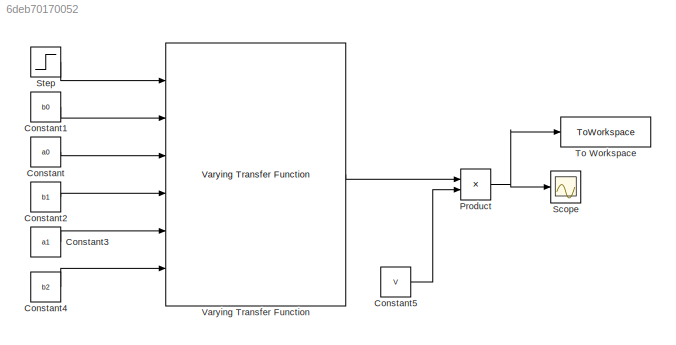
MODEL slx_6deb70170052
KIND model
CONFIG AbsTol = auto
CONFIG EnableMultiTasking = off
CONFIG FixedStep = auto
CONFIG MaxStep = auto
CONFIG MinStep = auto
CONFIG RelTol = 1e-3
CONFIG SampleTimeConstraint = Unconstrained
CONFIG Solver = VariableStepAuto
CONFIG SolverName = VariableStepAuto
CONFIG StartTime = 0.0
CONFIG StopTime = 10.0
BLOCK [Constant] Constant
  Value = a0
BLOCK [Constant] Constant1
  Value = b0
BLOCK [Constant] Constant2
  Value = b1
BLOCK [Constant] Constant3
  Value = a1
BLOCK [Constant] Constant4
  Value = b2
BLOCK [Constant] Constant5
  Value = V
BLOCK [Product] Product
  InputSameDT = off
  OutDataTypeStr = Inherit: Inherit via internal rule
  Ports = [2, 1]
  RndMeth = Floor
  SaturateOnIntegerOverflow = off
BLOCK [Scope] Scope
  Floating = off
  NumInputPorts = 1
  Ports = [1]
  ScopeSpecificationString = Simulink.scopes.TimeScopeBlockCfg('CurrentConfiguration', extmgr.ConfigurationSet(extmgr.Configuration('Core','General UI',true),extmgr.Configuration('Core','Source UI',true),extmgr.Configuration('Sources','WiredSimulink',true),extmgr.Configuration('Visuals','Time Domain',true,'SerializedDisplays',{struct('MinYLimReal','-192.19264','MaxYLimReal','2041.36965','YLabelReal','','MinYLimMag',' 0.00000'...<+1574ch>
BLOCK [Step] Step
  SampleTime = 0
  Time = 0
BLOCK [ToWorkspace] To Workspace
  FixptAsFi = on
  MaxDataPoints = inf
  Ports = [1]
  SampleTime = -1
  SaveFormat = Timeseries
  VariableName = lateral_accelration
BLOCK [Reference] Varying Transfer Function  REF=cstblocks/Linear Parameter Varying/Varying Transfer Function
  Ports = [6, 1]
  SourceBlock = cstblocks/Linear Parameter Varying/Varying Transfer Function
  SourceProductBaseCode = CT
  SourceProductName = Control System Toolbox
  SourceType = Varying Transfer Function
LINE Constant1:1 -> Varying Transfer Function:2
LINE Constant2:1 -> Varying Transfer Function:4
LINE Constant3:1 -> Varying Transfer Function:5
LINE Constant4:1 -> Varying Transfer Function:6
LINE Constant5:1 -> Product:2
LINE Constant:1 -> Varying Transfer Function:3
NET Product:1 -> Scope:1, To Workspace:1
LINE Step:1 -> Varying Transfer Function:1
LINE Varying Transfer Function:1 -> Product:1
note: NET lines group one-source signal fan-out (src -> all destinations, sorted); 1:1 wires keep LINE
